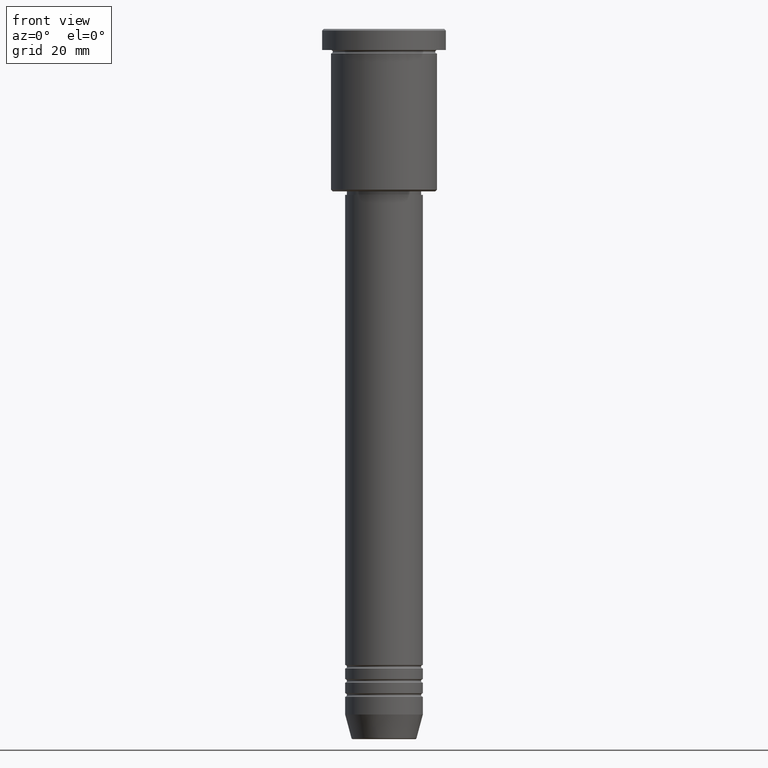
[diagram: clean part render]
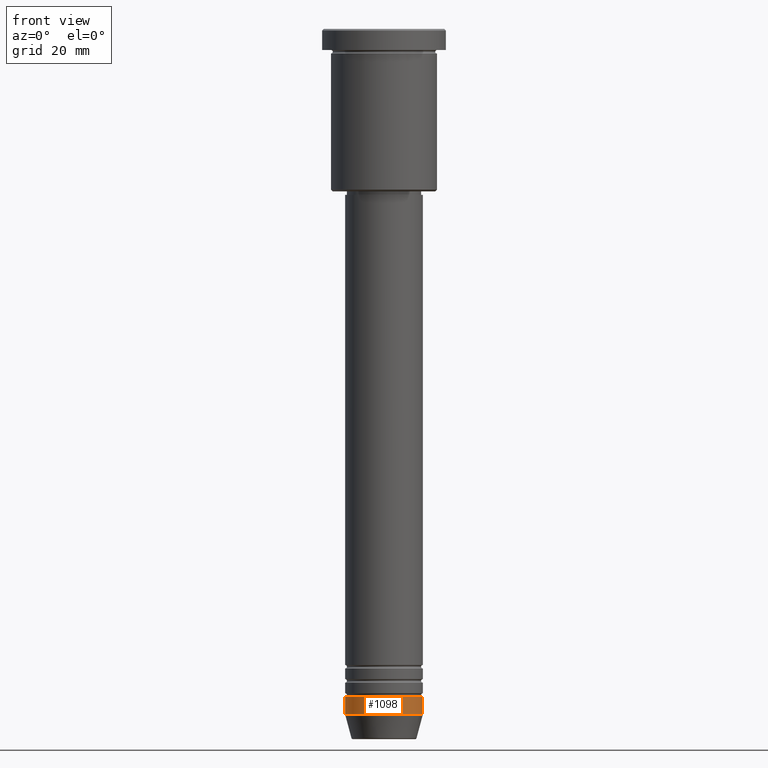
[diagram: same view with one face highlighted and labeled with its STEP entity id]
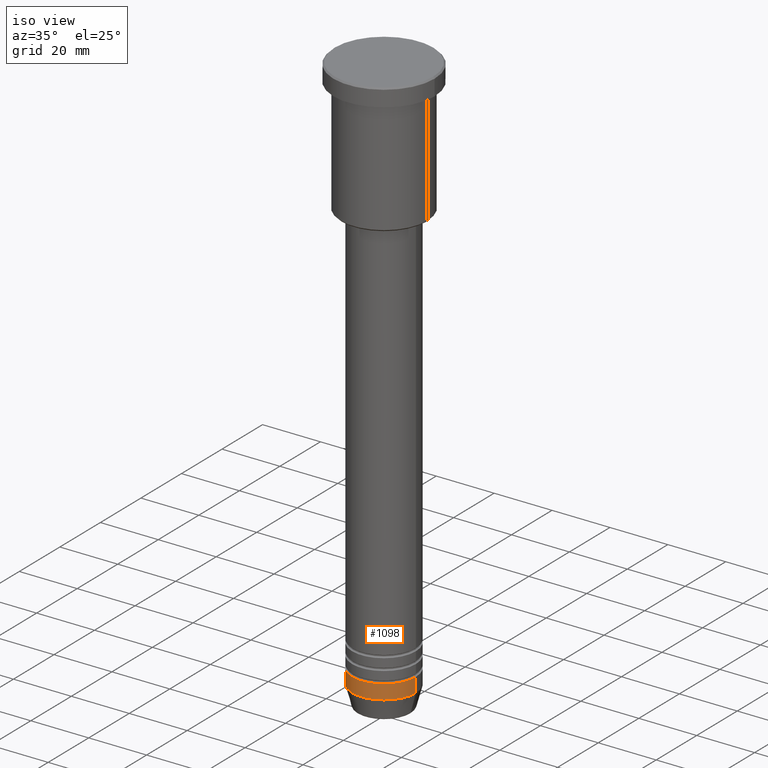
[diagram: same view with one face highlighted and labeled with its STEP entity id]
A machine part, front view. The second image highlights one B-rep face of the part: STEP entity #1098.
A second angle (iso view) of the same face is appended — the face is thin or edge-on in the first view.
In plain terms, the highlighted cylindrical surface (partial cylindrical patch) has radius 11 mm, axis along (-0, -0, 1).
Its self-contained STEP definition (entity closure, byte-faithful):
#6 = EDGE_CURVE ( 'NONE', #952, #1154, #587, .T. ) ;
#113 = LINE ( 'NONE', #1043, #212 ) ;
#195 = CARTESIAN_POINT ( 'NONE',  ( -11.00000000000000000, 1.347111479062088405E-15, -189.0000000000000284 ) ) ;
#196 = CARTESIAN_POINT ( 'NONE',  ( -11.00000000000000000, 1.347111479062088405E-15, -194.0000000000000000 ) ) ;
#203 = EDGE_CURVE ( 'NONE', #1005, #546, #113, .T. ) ;
#212 = VECTOR ( 'NONE', #558, 1000.000000000000000 ) ;
#309 = DIRECTION ( 'NONE',  ( -0.000000000000000000, -0.000000000000000000, 1.000000000000000000 ) ) ;
#326 = CARTESIAN_POINT ( 'NONE',  ( 11.00000000000000000, 0.000000000000000000, -189.0000000000000284 ) ) ;
#339 = AXIS2_PLACEMENT_3D ( 'NONE', #613, #1160, #812 ) ;
#352 = CIRCLE ( 'NONE', #637, 11.00000000000000000 ) ;
#359 = CARTESIAN_POINT ( 'NONE',  ( 11.00000000000000000, 0.000000000000000000, -194.0000000000000000 ) ) ;
#387 = EDGE_CURVE ( 'NONE', #1005, #952, #352, .T. ) ;
#413 = FACE_OUTER_BOUND ( 'NONE', #522, .T. ) ;
#445 = AXIS2_PLACEMENT_3D ( 'NONE', #972, #309, #679 ) ;
#451 = ORIENTED_EDGE ( 'NONE', *, *, #6, .T. ) ;
#486 = CIRCLE ( 'NONE', #339, 11.00000000000000000 ) ;
#522 = EDGE_LOOP ( 'NONE', ( #839, #753, #451, #1116 ) ) ;
#546 = VERTEX_POINT ( 'NONE', #195 ) ;
#558 = DIRECTION ( 'NONE',  ( -0.000000000000000000, -0.000000000000000000, 1.000000000000000000 ) ) ;
#567 = CARTESIAN_POINT ( 'NONE',  ( 11.00000000000000000, 0.000000000000000000, 0.000000000000000000 ) ) ;
#587 = LINE ( 'NONE', #567, #982 ) ;
#613 = CARTESIAN_POINT ( 'NONE',  ( 0.000000000000000000, 0.000000000000000000, -189.0000000000000284 ) ) ;
#637 = AXIS2_PLACEMENT_3D ( 'NONE', #979, #896, #986 ) ;
#679 = DIRECTION ( 'NONE',  ( 1.000000000000000000, 0.000000000000000000, 0.000000000000000000 ) ) ;
#729 = EDGE_CURVE ( 'NONE', #546, #1154, #486, .T. ) ;
#753 = ORIENTED_EDGE ( 'NONE', *, *, #387, .T. ) ;
#783 = DIRECTION ( 'NONE',  ( -0.000000000000000000, -0.000000000000000000, 1.000000000000000000 ) ) ;
#812 = DIRECTION ( 'NONE',  ( 1.000000000000000000, 0.000000000000000000, 0.000000000000000000 ) ) ;
#839 = ORIENTED_EDGE ( 'NONE', *, *, #203, .F. ) ;
#861 = CYLINDRICAL_SURFACE ( 'NONE', #445, 11.00000000000000000 ) ;
#896 = DIRECTION ( 'NONE',  ( -0.000000000000000000, -0.000000000000000000, 1.000000000000000000 ) ) ;
#952 = VERTEX_POINT ( 'NONE', #359 ) ;
#972 = CARTESIAN_POINT ( 'NONE',  ( 0.000000000000000000, 0.000000000000000000, 0.000000000000000000 ) ) ;
#979 = CARTESIAN_POINT ( 'NONE',  ( 0.000000000000000000, 0.000000000000000000, -194.0000000000000000 ) ) ;
#982 = VECTOR ( 'NONE', #783, 1000.000000000000000 ) ;
#986 = DIRECTION ( 'NONE',  ( 1.000000000000000000, 0.000000000000000000, 0.000000000000000000 ) ) ;
#1005 = VERTEX_POINT ( 'NONE', #196 ) ;
#1043 = CARTESIAN_POINT ( 'NONE',  ( -11.00000000000000000, 1.347111479062088405E-15, 0.000000000000000000 ) ) ;
#1098 = ADVANCED_FACE ( 'NONE', ( #413 ), #861, .T. ) ;
#1116 = ORIENTED_EDGE ( 'NONE', *, *, #729, .F. ) ;
#1154 = VERTEX_POINT ( 'NONE', #326 ) ;
#1160 = DIRECTION ( 'NONE',  ( -0.000000000000000000, -0.000000000000000000, 1.000000000000000000 ) ) ;